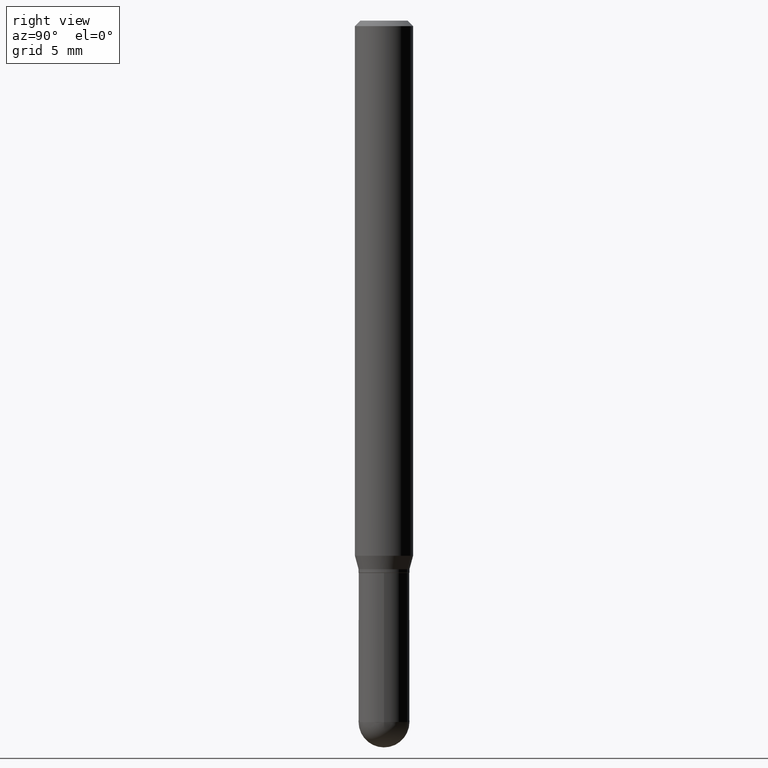
[diagram: clean part render]
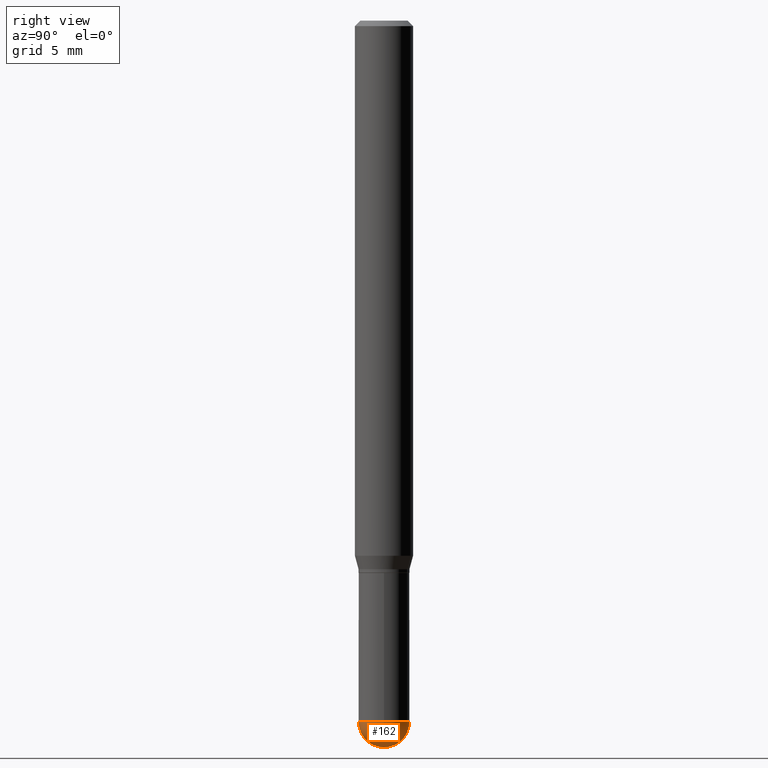
[diagram: same view with one face highlighted and labeled with its STEP entity id]
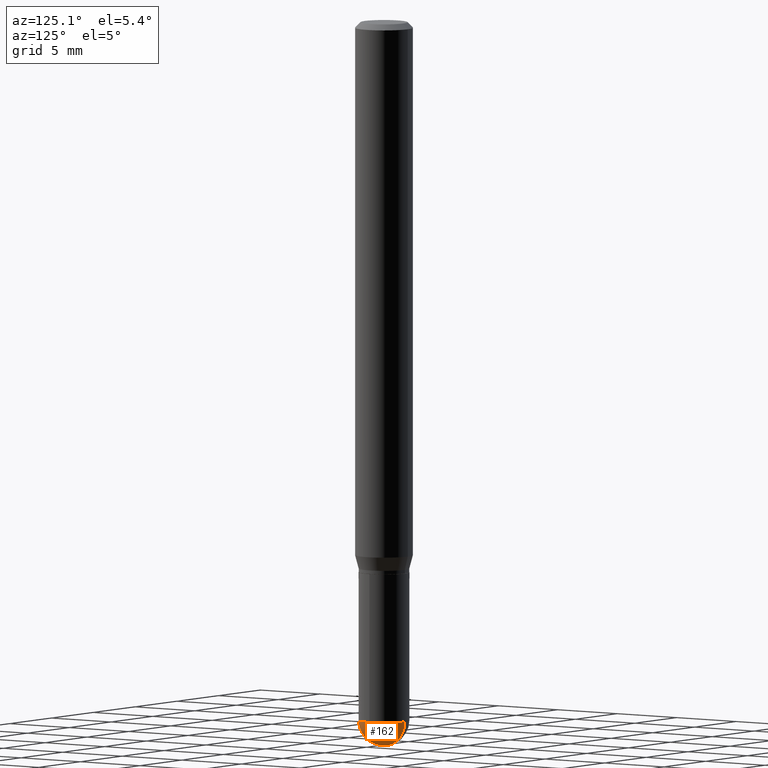
[diagram: same view with one face highlighted and labeled with its STEP entity id]
A machine part, right view. The second image highlights one B-rep face of the part: STEP entity #162.
A second angle (auxiliary view) of the same face is appended — the face is thin or edge-on in the first view.
In plain terms, the highlighted spherical surface has radius 1.7501 mm.
Its self-contained STEP definition (entity closure, byte-faithful):
#16 = CARTESIAN_POINT ( 'NONE',  ( 4.851357352610053575E-29, -6.819347608944073688E-15, -1.968500000000000139 ) ) ;
#24 = DIRECTION ( 'NONE',  ( -2.445468806185136597E-29, 3.491481338843145583E-15, 1.000000000000000000 ) ) ;
#25 = AXIS2_PLACEMENT_3D ( 'NONE', #445, #297, #338 ) ;
#26 = AXIS2_PLACEMENT_3D ( 'NONE', #312, #24, #275 ) ;
#34 = DIRECTION ( 'NONE',  ( -1.000000000000000000, 7.105427357601001070E-15, -4.926315508542082329E-29 ) ) ;
#65 = ORIENTED_EDGE ( 'NONE', *, *, #273, .F. ) ;
#67 = VERTEX_POINT ( 'NONE', #142 ) ;
#70 = AXIS2_PLACEMENT_3D ( 'NONE', #361, #203, #124 ) ;
#89 = CIRCLE ( 'NONE', #26, 0.06890000000000007230 ) ;
#105 = EDGE_CURVE ( 'NONE', #245, #67, #504, .T. ) ;
#124 = DIRECTION ( 'NONE',  ( 1.000000000000000000, -6.982962677686273021E-15, 0.000000000000000000 ) ) ;
#126 = VERTEX_POINT ( 'NONE', #260 ) ;
#135 = DIRECTION ( 'NONE',  ( -7.105427357601001859E-15, -1.000000000000000000, 0.000000000000000000 ) ) ;
#142 = CARTESIAN_POINT ( 'NONE',  ( -4.895639449386624073E-16, -0.06890000000000662261, -1.899599999999999955 ) ) ;
#146 = ORIENTED_EDGE ( 'NONE', *, *, #403, .F. ) ;
#162 = ADVANCED_FACE ( 'NONE', ( #487 ), #407, .T. ) ;
#174 = AXIS2_PLACEMENT_3D ( 'NONE', #454, #34, #135 ) ;
#190 = CARTESIAN_POINT ( 'NONE',  ( 4.679918503997674770E-29, -6.583003452920844326E-15, -1.899600000000000177 ) ) ;
#203 = DIRECTION ( 'NONE',  ( -2.445468806185136597E-29, 3.491481338843145583E-15, 1.000000000000000000 ) ) ;
#245 = VERTEX_POINT ( 'NONE', #16 ) ;
#260 = CARTESIAN_POINT ( 'NONE',  ( 4.811261284926304785E-16, 0.06889999999999341096, -1.899600000000000399 ) ) ;
#270 = AXIS2_PLACEMENT_3D ( 'NONE', #190, #300, #459 ) ;
#273 = EDGE_CURVE ( 'NONE', #67, #302, #89, .T. ) ;
#275 = DIRECTION ( 'NONE',  ( 1.000000000000000000, -6.982962677686273021E-15, 0.000000000000000000 ) ) ;
#297 = DIRECTION ( 'NONE',  ( -1.000000000000000000, 6.982962677686265922E-15, -4.883557194083112901E-29 ) ) ;
#300 = DIRECTION ( 'NONE',  ( 1.000000000000000000, -6.982962677686265922E-15, 4.883557194083112340E-29 ) ) ;
#302 = VERTEX_POINT ( 'NONE', #427 ) ;
#312 = CARTESIAN_POINT ( 'NONE',  ( 4.645412544229285965E-29, -6.632417951266439838E-15, -1.899600000000000177 ) ) ;
#328 = CIRCLE ( 'NONE', #270, 0.06889999999999996128 ) ;
#336 = EDGE_LOOP ( 'NONE', ( #481, #411, #146, #65 ) ) ;
#338 = DIRECTION ( 'NONE',  ( 6.982962677686265922E-15, 1.000000000000000000, -3.964946289788482474E-15 ) ) ;
#360 = EDGE_CURVE ( 'NONE', #245, #126, #328, .T. ) ;
#361 = CARTESIAN_POINT ( 'NONE',  ( 4.645412544229285965E-29, -6.632417951266439838E-15, -1.899600000000000177 ) ) ;
#403 = EDGE_CURVE ( 'NONE', #302, #126, #488, .T. ) ;
#407 = SPHERICAL_SURFACE ( 'NONE', #25, 0.06889999999999996128 ) ;
#411 = ORIENTED_EDGE ( 'NONE', *, *, #360, .T. ) ;
#427 = CARTESIAN_POINT ( 'NONE',  ( 0.06890000000000008618, -6.409137719647418882E-15, -1.899600000000000177 ) ) ;
#445 = CARTESIAN_POINT ( 'NONE',  ( 4.679918503997674770E-29, -6.583003452920844326E-15, -1.899600000000000177 ) ) ;
#454 = CARTESIAN_POINT ( 'NONE',  ( 4.679918503997674770E-29, -6.583003452920844326E-15, -1.899600000000000177 ) ) ;
#459 = DIRECTION ( 'NONE',  ( 6.982962677686265922E-15, 1.000000000000000000, 0.000000000000000000 ) ) ;
#481 = ORIENTED_EDGE ( 'NONE', *, *, #105, .F. ) ;
#487 = FACE_OUTER_BOUND ( 'NONE', #336, .T. ) ;
#488 = CIRCLE ( 'NONE', #70, 0.06890000000000007230 ) ;
#504 = CIRCLE ( 'NONE', #174, 0.06889999999999996128 ) ;